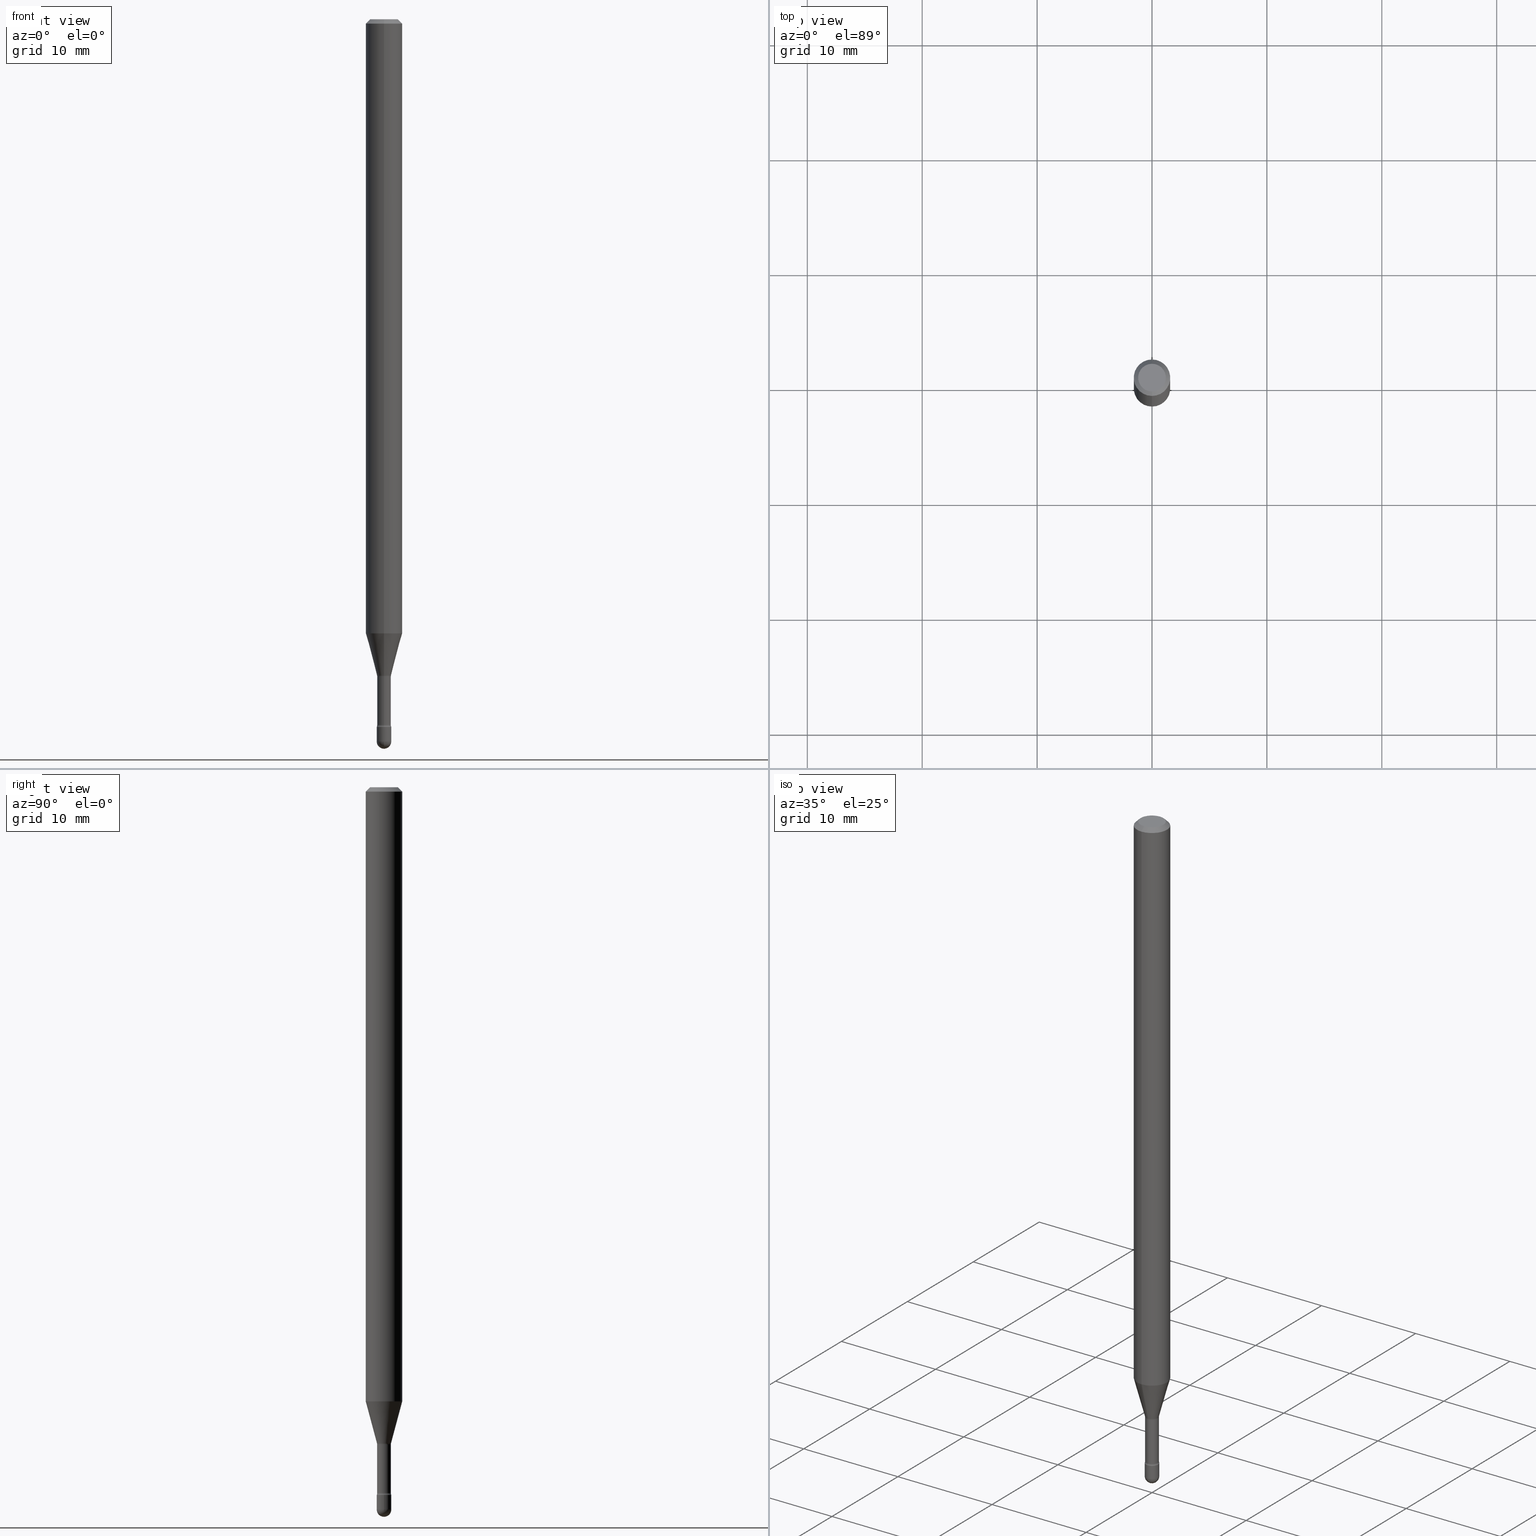
[diagram: canonical four-view strip — front | top / right | iso, engineering-drawing reading convention]
A machine part, canonical four-view strip (front | top / right | iso — engineering-drawing reading convention). The complete STEP part file that produces these views, byte-faithful:
ISO-10303-21;
HEADER;
FILE_DESCRIPTION (( 'STEP AP203' ),
    '1' );
FILE_NAME ('03842.STEP',
    '2024-04-09T20:42:33',
    ( '' ),
    ( '' ),
    'SwSTEP 2.0',
    'SolidWorks 2023',
    '' );
FILE_SCHEMA (( 'CONFIG_CONTROL_DESIGN' ));
ENDSEC;

DATA;
#1 = CARTESIAN_POINT ( 'NONE',  ( 3.668188435593002173E-31, -5.237243165022135808E-17, -0.01500000000000008271 ) ) ;
#2 = CONICAL_SURFACE ( 'NONE', #68, 0.06250000000000000000, 0.7853981633974483900 ) ;
#3 = ADVANCED_FACE ( 'NONE', ( #553 ), #209, .T. ) ;
#4 = VERTEX_POINT ( 'NONE', #325 ) ;
#5 = ORIENTED_EDGE ( 'NONE', *, *, #521, .T. ) ;
#6 = ADVANCED_FACE ( 'NONE', ( #514 ), #531, .F. ) ;
#7 = CC_DESIGN_PERSON_AND_ORGANIZATION_ASSIGNMENT ( #550, #251, ( #156 ) ) ;
#8 = DIRECTION ( 'NONE',  ( -2.445458957061988148E-29, 3.491495443348071688E-15, 1.000000000000000000 ) ) ;
#9 = VECTOR ( 'NONE', #273, 39.37007874015748143 ) ;
#10 = CYLINDRICAL_SURFACE ( 'NONE', #340, 0.06250000000000000000 ) ;
#11 = EDGE_CURVE ( 'NONE', #268, #386, #513, .T. ) ;
#12 = APPLICATION_CONTEXT ( 'configuration controlled 3d designs of mechanical parts and assemblies' ) ;
#13 = ORIENTED_EDGE ( 'NONE', *, *, #387, .F. ) ;
#14 = CC_DESIGN_DATE_AND_TIME_ASSIGNMENT ( #194, #367, ( #501 ) ) ;
#15 = CARTESIAN_POINT ( 'NONE',  ( -1.169113584055446105E-44, 1.669184350826100908E-30, 4.780733988912460139E-16 ) ) ;
#16 = VERTEX_POINT ( 'NONE', #246 ) ;
#17 = CARTESIAN_POINT ( 'NONE',  ( 6.052535295308213750E-29, -8.641416313636786609E-15, -2.475000000000000089 ) ) ;
#18 = DIRECTION ( 'NONE',  ( 1.000000000000000000, -6.982962677686253300E-15, 0.000000000000000000 ) ) ;
#19 = AXIS2_PLACEMENT_3D ( 'NONE', #255, #205, #374 ) ;
#20 = AXIS2_PLACEMENT_3D ( 'NONE', #236, #443, #62 ) ;
#21 = ORIENTED_EDGE ( 'NONE', *, *, #421, .T. ) ;
#22 = CARTESIAN_POINT ( 'NONE',  ( -4.364351673553912750E-16, -0.06250000000000005551, -0.01499999999999986587 ) ) ;
#23 = CARTESIAN_POINT ( 'NONE',  ( 5.507134095058153276E-29, -7.862727945975154594E-15, -2.251974787463811190 ) ) ;
#24 = CALENDAR_DATE ( 2024, 9, 4 ) ;
#25 = CARTESIAN_POINT ( 'NONE',  ( 1.776356839400844181E-16, 0.02499999999999154635, -2.425000000000000266 ) ) ;
#26 = CARTESIAN_POINT ( 'NONE',  ( -1.640996229255680627E-16, -0.02350000000000843775, -2.418461651584689065 ) ) ;
#27 = DIMENSIONAL_EXPONENTS ( 1.000000000000000000, 0.000000000000000000, 0.000000000000000000, 0.000000000000000000, 0.000000000000000000, 0.000000000000000000, 0.000000000000000000 ) ;
#28 = APPROVAL_DATE_TIME ( #203, #304 ) ;
#29 = CARTESIAN_POINT ( 'NONE',  ( -1.169113584055446105E-44, 1.669184350826100908E-30, 4.780733988912460139E-16 ) ) ;
#30 = CARTESIAN_POINT ( 'NONE',  ( 2.023481237764511496E-45, -2.889152892407899121E-31, -8.274636210756143623E-17 ) ) ;
#31 = VECTOR ( 'NONE', #554, 39.37007874015748143 ) ;
#32 = APPROVAL_PERSON_ORGANIZATION ( #208, #304, #79 ) ;
#33 = ORIENTED_EDGE ( 'NONE', *, *, #453, .F. ) ;
#34 = CARTESIAN_POINT ( 'NONE',  ( 1.669775429036234948E-16, 0.02349999999999999659, 3.960232559725664247E-16 ) ) ;
#35 = ORIENTED_EDGE ( 'NONE', *, *, #521, .F. ) ;
#36 = DATE_TIME_ROLE ( 'creation_date' ) ;
#37 = CARTESIAN_POINT ( 'NONE',  ( 2.023481237764511496E-45, -2.889152892407899121E-31, -8.274636210756143623E-17 ) ) ;
#38 = ORIENTED_EDGE ( 'NONE', *, *, #324, .F. ) ;
#39 = APPROVAL_ROLE ( '' ) ;
#40 = VERTEX_POINT ( 'NONE', #296 ) ;
#41 = ORIENTED_EDGE ( 'NONE', *, *, #387, .T. ) ;
#42 = CLOSED_SHELL ( 'NONE', ( #349, #344, #6, #310, #305, #334, #454, #285, #470, #223, #158, #351, #105, #313 ) ) ;
#43 = CARTESIAN_POINT ( 'NONE',  ( 5.914248708178706297E-29, -8.444047836419993030E-15, -2.418461651584689065 ) ) ;
#44 = AXIS2_PLACEMENT_3D ( 'NONE', #257, #424, #492 ) ;
#45 = ORIENTED_EDGE ( 'NONE', *, *, #11, .T. ) ;
#46 = DIRECTION ( 'NONE',  ( -2.445458957061988148E-29, 3.491495443348071688E-15, 1.000000000000000000 ) ) ;
#47 = CARTESIAN_POINT ( 'NONE',  ( 5.146346147441865393E-29, -7.347677650363324032E-15, -2.104450018504814501 ) ) ;
#48 = EDGE_LOOP ( 'NONE', ( #232, #368, #59, #89 ) ) ;
#49 = DATE_AND_TIME ( #73, #261 ) ;
#50 = CIRCLE ( 'NONE', #532, 0.02500000000000000139 ) ;
#51 = VERTEX_POINT ( 'NONE', #87 ) ;
#52 = DIRECTION ( 'NONE',  ( -2.445468806185136597E-29, 3.491481338843145583E-15, 1.000000000000000000 ) ) ;
#53 = EDGE_CURVE ( 'NONE', #516, #379, #416, .T. ) ;
#54 = ADVANCED_FACE ( 'NONE', ( #213 ), #252, .T. ) ;
#55 = CARTESIAN_POINT ( 'NONE',  ( 3.073492131224461599E-16, 0.02401111260565613401, -2.248092501787273267 ) ) ;
#56 = AXIS2_PLACEMENT_3D ( 'NONE', #77, #412, #278 ) ;
#57 = EDGE_CURVE ( 'NONE', #4, #51, #78, .T. ) ;
#58 = CC_DESIGN_PERSON_AND_ORGANIZATION_ASSIGNMENT ( #323, #164, ( #156 ) ) ;
#59 = ORIENTED_EDGE ( 'NONE', *, *, #264, .F. ) ;
#60 = CARTESIAN_POINT ( 'NONE',  ( 2.735589532676977819E-16, 0.03849999999999157568, -2.418461651584689065 ) ) ;
#61 = ORIENTED_EDGE ( 'NONE', *, *, #95, .F. ) ;
#62 = DIRECTION ( 'NONE',  ( 1.000000000000000000, -6.982962677686253300E-15, 0.000000000000000000 ) ) ;
#63 = EDGE_CURVE ( 'NONE', #392, #76, #130, .T. ) ;
#64 = CARTESIAN_POINT ( 'NONE',  ( -1.676687031750188674E-16, -0.02401111260567184019, -2.248092501787273267 ) ) ;
#65 = ORIENTED_EDGE ( 'NONE', *, *, #253, .T. ) ;
#66 = DIRECTION ( 'NONE',  ( -2.445468806185136877E-29, 3.491481338843145188E-15, 1.000000000000000000 ) ) ;
#67 = CYLINDRICAL_SURFACE ( 'NONE', #176, 0.02349999999999999659 ) ;
#68 = AXIS2_PLACEMENT_3D ( 'NONE', #148, #457, #113 ) ;
#69 = PERSON_AND_ORGANIZATION_ROLE ( 'classification_officer' ) ;
#70 = LOCAL_TIME ( 16, 42, 33.00000000000000000, #448 ) ;
#71 = DIRECTION ( 'NONE',  ( -1.000000000000000000, 6.982962677686266711E-15, -4.883557194083112901E-29 ) ) ;
#72 = DIRECTION ( 'NONE',  ( -2.445458957061988148E-29, 3.491495443348071688E-15, 1.000000000000000000 ) ) ;
#73 = CALENDAR_DATE ( 2024, 9, 4 ) ;
#74 = DIRECTION ( 'NONE',  ( -6.982962677686263555E-15, -1.000000000000000000, 0.000000000000000000 ) ) ;
#75 = DIRECTION ( 'NONE',  ( -2.445468806185136597E-29, 3.491481338843145583E-15, 1.000000000000000000 ) ) ;
#76 = VERTEX_POINT ( 'NONE', #420 ) ;
#77 = CARTESIAN_POINT ( 'NONE',  ( 5.497617944799579952E-29, -7.849204726215230524E-15, -2.248092501787273267 ) ) ;
#78 = CIRCLE ( 'NONE', #282, 0.02500000000000000139 ) ;
#79 = APPROVAL_ROLE ( '' ) ;
#80 = CIRCLE ( 'NONE', #214, 0.02500000000000000486 ) ;
#81 = APPROVAL_PERSON_ORGANIZATION ( #291, #226, #39 ) ;
#82 = VERTEX_POINT ( 'NONE', #25 ) ;
#83 = CC_DESIGN_PERSON_AND_ORGANIZATION_ASSIGNMENT ( #212, #69, ( #501 ) ) ;
#84 = LINE ( 'NONE', #337, #143 ) ;
#85 = DATE_AND_TIME ( #280, #70 ) ;
#86 = DIRECTION ( 'NONE',  ( 7.105427357601001859E-15, 1.000000000000000000, 0.000000000000000000 ) ) ;
#87 = CARTESIAN_POINT ( 'NONE',  ( 0.02500000000000000139, -8.641416313636785031E-15, -2.425000000000000266 ) ) ;
#88 = DIRECTION ( 'NONE',  ( 1.000000000000000000, -6.982962677686253300E-15, 0.000000000000000000 ) ) ;
#89 = ORIENTED_EDGE ( 'NONE', *, *, #421, .F. ) ;
#90 = DIRECTION ( 'NONE',  ( -2.445458957061988148E-29, 3.491495443348071688E-15, 1.000000000000000000 ) ) ;
#91 = AXIS2_PLACEMENT_3D ( 'NONE', #43, #517, #520 ) ;
#92 = ORIENTED_EDGE ( 'NONE', *, *, #525, .F. ) ;
#93 = DIRECTION ( 'NONE',  ( -6.982962677686265922E-15, -1.000000000000000000, 3.483106191921935554E-15 ) ) ;
#94 = ORIENTED_EDGE ( 'NONE', *, *, #493, .F. ) ;
#95 = EDGE_CURVE ( 'NONE', #256, #76, #180, .T. ) ;
#96 = ORIENTED_EDGE ( 'NONE', *, *, #264, .T. ) ;
#97 = CARTESIAN_POINT ( 'NONE',  ( 1.723066134218835387E-16, 0.02349999999999155195, -2.418461651584689065 ) ) ;
#98 = CC_DESIGN_PERSON_AND_ORGANIZATION_ASSIGNMENT ( #508, #413, ( #391 ) ) ;
#99 = ORIENTED_EDGE ( 'NONE', *, *, #403, .F. ) ;
#100 = EDGE_CURVE ( 'NONE', #530, #40, #404, .T. ) ;
#101 = FACE_OUTER_BOUND ( 'NONE', #134, .T. ) ;
#102 = DIRECTION ( 'NONE',  ( -2.445458957061988148E-29, 3.491495443348071688E-15, 1.000000000000000000 ) ) ;
#103 = CONICAL_SURFACE ( 'NONE', #220, 0.06250000000000000000, 0.7853981633974483900 ) ;
#104 = DIRECTION ( 'NONE',  ( -6.982962677686265922E-15, -1.000000000000000000, 3.491495443348071688E-15 ) ) ;
#105 = ADVANCED_FACE ( 'NONE', ( #502 ), #414, .T. ) ;
#106 = ORIENTED_EDGE ( 'NONE', *, *, #324, .T. ) ;
#107 = DIRECTION ( 'NONE',  ( -6.982962677686265133E-15, -1.000000000000000000, 0.000000000000000000 ) ) ;
#108 = DIRECTION ( 'NONE',  ( -2.445458957061988148E-29, 3.491495443348071688E-15, 1.000000000000000000 ) ) ;
#109 = EDGE_LOOP ( 'NONE', ( #5, #494, #277, #358 ) ) ;
#110 = DIRECTION ( 'NONE',  ( -7.105427357601001070E-15, -1.000000000000000000, 0.000000000000000000 ) ) ;
#111 = DIRECTION ( 'NONE',  ( -2.445458957061988148E-29, 3.491495443348071688E-15, 1.000000000000000000 ) ) ;
#112 = CARTESIAN_POINT ( 'NONE',  ( 5.930261854998957144E-29, -8.466842246694628363E-15, -2.425000000000000266 ) ) ;
#113 = DIRECTION ( 'NONE',  ( 6.982962677686265922E-15, 1.000000000000000000, -3.483106191921935554E-15 ) ) ;
#114 = AXIS2_PLACEMENT_3D ( 'NONE', #238, #111, #136 ) ;
#115 = ORIENTED_EDGE ( 'NONE', *, *, #225, .F. ) ;
#116 = FACE_OUTER_BOUND ( 'NONE', #178, .T. ) ;
#117 =( NAMED_UNIT ( * ) PLANE_ANGLE_UNIT ( ) SI_UNIT ( $, .RADIAN. ) );
#118 = EDGE_LOOP ( 'NONE', ( #451, #230, #133, #427, #106 ) ) ;
#119 = DIRECTION ( 'NONE',  ( -6.982962677686267499E-15, -1.000000000000000000, 0.000000000000000000 ) ) ;
#120 = DIRECTION ( 'NONE',  ( -1.000000000000000000, 6.982962677686265922E-15, -4.883557194083112901E-29 ) ) ;
#121 = AXIS2_PLACEMENT_3D ( 'NONE', #279, #8, #402 ) ;
#122 = CC_DESIGN_APPROVAL ( #173, ( #501 ) ) ;
#123 = DIRECTION ( 'NONE',  ( -2.445458957061988148E-29, 3.491495443348071688E-15, 1.000000000000000000 ) ) ;
#124 = EDGE_CURVE ( 'NONE', #186, #536, #383, .T. ) ;
#125 = ADVANCED_BREP_SHAPE_REPRESENTATION ( '03842', ( #447, #436, #426 ), #477 ) ;
#126 = EDGE_LOOP ( 'NONE', ( #147, #99, #184, #221 ) ) ;
#127 = CARTESIAN_POINT ( 'NONE',  ( 3.668188435593002173E-31, -5.237243165022135808E-17, -0.01500000000000008271 ) ) ;
#128 = EDGE_LOOP ( 'NONE', ( #376, #35, #270, #96 ) ) ;
#129 = CIRCLE ( 'NONE', #219, 0.06250000000000000000 ) ;
#130 = CIRCLE ( 'NONE', #329, 0.02350000000000000352 ) ;
#131 = CARTESIAN_POINT ( 'NONE',  ( 5.930237970875322114E-29, -8.466876450119073706E-15, -2.425000000000000266 ) ) ;
#132 = AXIS2_PLACEMENT_3D ( 'NONE', #345, #177, #174 ) ;
#133 = ORIENTED_EDGE ( 'NONE', *, *, #153, .F. ) ;
#134 = EDGE_LOOP ( 'NONE', ( #541, #163, #179, #292 ) ) ;
#135 = AXIS2_PLACEMENT_3D ( 'NONE', #262, #523, #388 ) ;
#136 = DIRECTION ( 'NONE',  ( -6.982962677686265922E-15, -1.000000000000000000, 0.000000000000000000 ) ) ;
#137 = FACE_OUTER_BOUND ( 'NONE', #118, .T. ) ;
#138 = CARTESIAN_POINT ( 'NONE',  ( 5.914272527905343055E-29, -8.444013725215714647E-15, -2.418461651584689065 ) ) ;
#139 = CC_DESIGN_DATE_AND_TIME_ASSIGNMENT ( #85, #36, ( #391 ) ) ;
#140 = ORIENTED_EDGE ( 'NONE', *, *, #57, .T. ) ;
#141 = CIRCLE ( 'NONE', #294, 0.02401111260566398883 ) ;
#142 = DIRECTION ( 'NONE',  ( -6.982962677686265922E-15, -1.000000000000000000, 3.491495443348071688E-15 ) ) ;
#143 = VECTOR ( 'NONE', #510, 39.37007874015748143 ) ;
#144 = ORIENTED_EDGE ( 'NONE', *, *, #522, .T. ) ;
#145 = FACE_OUTER_BOUND ( 'NONE', #126, .T. ) ;
#146 = DIRECTION ( 'NONE',  ( -6.982962677686265922E-15, -1.000000000000000000, 3.491495443348071688E-15 ) ) ;
#147 = ORIENTED_EDGE ( 'NONE', *, *, #441, .F. ) ;
#148 = CARTESIAN_POINT ( 'NONE',  ( 3.668188435593002173E-31, -5.237243165022135808E-17, -0.01500000000000008271 ) ) ;
#149 = APPROVAL_STATUS ( 'not_yet_approved' ) ;
#150 = EDGE_CURVE ( 'NONE', #268, #186, #429, .T. ) ;
#151 = DIRECTION ( 'NONE',  ( -2.445458957061988148E-29, 3.491495443348071688E-15, 1.000000000000000000 ) ) ;
#152 = LINE ( 'NONE', #369, #450 ) ;
#153 = EDGE_CURVE ( 'NONE', #51, #4, #301, .T. ) ;
#154 = AXIS2_PLACEMENT_3D ( 'NONE', #271, #102, #146 ) ;
#155 =( NAMED_UNIT ( * ) SI_UNIT ( $, .STERADIAN. ) SOLID_ANGLE_UNIT ( ) );
#156 = PRODUCT_DEFINITION_FORMATION_WITH_SPECIFIED_SOURCE ( 'ANY', '', #461, .NOT_KNOWN. ) ;
#157 = EDGE_LOOP ( 'NONE', ( #115, #274, #490, #263 ) ) ;
#158 = ADVANCED_FACE ( 'NONE', ( #472 ), #564, .F. ) ;
#159 = DIRECTION ( 'NONE',  ( -2.445458957061988148E-29, 3.491495443348071688E-15, 1.000000000000000000 ) ) ;
#160 = COORDINATED_UNIVERSAL_TIME_OFFSET ( 5, 0, .BEHIND. ) ;
#161 = DIRECTION ( 'NONE',  ( -2.438088387897960049E-29, 3.491481338843145188E-15, 1.000000000000000000 ) ) ;
#162 = FACE_OUTER_BOUND ( 'NONE', #519, .T. ) ;
#163 = ORIENTED_EDGE ( 'NONE', *, *, #441, .T. ) ;
#164 = PERSON_AND_ORGANIZATION_ROLE ( 'design_supplier' ) ;
#165 = EDGE_CURVE ( 'NONE', #82, #352, #425, .T. ) ;
#166 = DIRECTION ( 'NONE',  ( -6.982962677686266711E-15, -1.000000000000000000, 3.491495443348071294E-15 ) ) ;
#167 = ORIENTED_EDGE ( 'NONE', *, *, #210, .F. ) ;
#168 = AXIS2_PLACEMENT_3D ( 'NONE', #127, #299, #474 ) ;
#169 = LOCAL_TIME ( 16, 42, 33.00000000000000000, #160 ) ;
#170 = CARTESIAN_POINT ( 'NONE',  ( 4.440892098500625669E-16, 0.06250000000000000000, 2.598549336819915827E-16 ) ) ;
#171 = EDGE_CURVE ( 'NONE', #386, #268, #129, .T. ) ;
#172 = DIRECTION ( 'NONE',  ( -6.982962677686265133E-15, -1.000000000000000000, 0.000000000000000000 ) ) ;
#173 = APPROVAL ( #149, 'UNSPECIFIED' ) ;
#174 = DIRECTION ( 'NONE',  ( 6.982962677686265922E-15, 1.000000000000000000, -3.491495443348071688E-15 ) ) ;
#175 = AXIS2_PLACEMENT_3D ( 'NONE', #37, #151, #328 ) ;
#176 = AXIS2_PLACEMENT_3D ( 'NONE', #15, #322, #440 ) ;
#177 = DIRECTION ( 'NONE',  ( 2.445458957061987588E-29, -3.491495443348071688E-15, -1.000000000000000000 ) ) ;
#178 = EDGE_LOOP ( 'NONE', ( #13, #259, #38, #92 ) ) ;
#179 = ORIENTED_EDGE ( 'NONE', *, *, #210, .T. ) ;
#180 = CIRCLE ( 'NONE', #551, 0.01500000000000002720 ) ;
#181 = AXIS2_PLACEMENT_3D ( 'NONE', #484, #108, #234 ) ;
#182 = CARTESIAN_POINT ( 'NONE',  ( 4.440892098501137935E-16, 0.06249999999999262396, -2.104450018504814501 ) ) ;
#183 = CARTESIAN_POINT ( 'NONE',  ( 6.052535295308213750E-29, -8.641416313636786609E-15, -2.475000000000000089 ) ) ;
#184 = ORIENTED_EDGE ( 'NONE', *, *, #547, .T. ) ;
#185 = DIRECTION ( 'NONE',  ( 2.445458957061988148E-29, -3.491495443348071688E-15, -1.000000000000000000 ) ) ;
#186 = VERTEX_POINT ( 'NONE', #479 ) ;
#187 = CLOSED_SHELL ( 'NONE', ( #258, #3, #54, #529, #463 ) ) ;
#188 = DIRECTION ( 'NONE',  ( -1.000000000000000000, 6.982962677686266711E-15, -4.883557194083112901E-29 ) ) ;
#189 = AXIS2_PLACEMENT_3D ( 'NONE', #497, #333, #542 ) ;
#190 = FACE_OUTER_BOUND ( 'NONE', #306, .T. ) ;
#191 = ORIENTED_EDGE ( 'NONE', *, *, #11, .F. ) ;
#192 = LINE ( 'NONE', #365, #468 ) ;
#193 = FACE_OUTER_BOUND ( 'NONE', #48, .T. ) ;
#194 = DATE_AND_TIME ( #410, #249 ) ;
#195 = DIRECTION ( 'NONE',  ( 1.000000000000000000, -6.982962677686254878E-15, 0.000000000000000000 ) ) ;
#196 = CARTESIAN_POINT ( 'NONE',  ( 1.669775429036826593E-16, 0.02349999999999213482, -2.251974787463811190 ) ) ;
#197 = COORDINATED_UNIVERSAL_TIME_OFFSET ( 5, 0, .BEHIND. ) ;
#198 = EDGE_CURVE ( 'NONE', #386, #536, #217, .T. ) ;
#199 = DIRECTION ( 'NONE',  ( -2.445458957061988148E-29, 3.491495443348071688E-15, 1.000000000000000000 ) ) ;
#200 = LINE ( 'NONE', #460, #272 ) ;
#201 = CIRCLE ( 'NONE', #260, 0.02401111260566398883 ) ;
#202 = TOROIDAL_SURFACE ( 'NONE', #154, 0.03850000000000000644, 0.01500000000000002373 ) ;
#203 = DATE_AND_TIME ( #370, #169 ) ;
#204 = CC_DESIGN_APPROVAL ( #226, ( #156 ) ) ;
#205 = DIRECTION ( 'NONE',  ( -2.445458957061988148E-29, 3.491495443348071688E-15, 1.000000000000000000 ) ) ;
#206 = CARTESIAN_POINT ( 'NONE',  ( -0.02500000000000000486, 1.776356839400250810E-16, -1.229733772563726656E-30 ) ) ;
#207 = ORIENTED_EDGE ( 'NONE', *, *, #150, .T. ) ;
#208 = PERSON_AND_ORGANIZATION ( #381, #406 ) ;
#209 = SPHERICAL_SURFACE ( 'NONE', #353, 0.02499999999999993894 ) ;
#210 = EDGE_CURVE ( 'NONE', #536, #186, #293, .T. ) ;
#211 = VERTEX_POINT ( 'NONE', #389 ) ;
#212 = PERSON_AND_ORGANIZATION ( #381, #406 ) ;
#213 = FACE_OUTER_BOUND ( 'NONE', #480, .T. ) ;
#214 = AXIS2_PLACEMENT_3D ( 'NONE', #452, #75, #241 ) ;
#215 = DIRECTION ( 'NONE',  ( -2.445458957061988148E-29, 3.491495443348071688E-15, 1.000000000000000000 ) ) ;
#216 = FACE_OUTER_BOUND ( 'NONE', #400, .T. ) ;
#217 = LINE ( 'NONE', #390, #538 ) ;
#218 = ORIENTED_EDGE ( 'NONE', *, *, #153, .T. ) ;
#219 = AXIS2_PLACEMENT_3D ( 'NONE', #47, #90, #302 ) ;
#220 = AXIS2_PLACEMENT_3D ( 'NONE', #231, #185, #228 ) ;
#221 = ORIENTED_EDGE ( 'NONE', *, *, #124, .T. ) ;
#222 = CARTESIAN_POINT ( 'NONE',  ( 6.052535295308213750E-29, -8.641416313636786609E-15, -2.475000000000000089 ) ) ;
#223 = ADVANCED_FACE ( 'NONE', ( #216 ), #566, .F. ) ;
#224 = CARTESIAN_POINT ( 'NONE',  ( -1.169113584055446105E-44, 1.669184350826100908E-30, 4.780733988912460139E-16 ) ) ;
#225 = EDGE_CURVE ( 'NONE', #379, #516, #466, .T. ) ;
#226 = APPROVAL ( #338, 'UNSPECIFIED' ) ;
#227 = AXIS2_PLACEMENT_3D ( 'NONE', #346, #298, #88 ) ;
#228 = DIRECTION ( 'NONE',  ( 6.982962677686265922E-15, 1.000000000000000000, -3.483106191921935554E-15 ) ) ;
#229 = EDGE_CURVE ( 'NONE', #559, #211, #515, .T. ) ;
#230 = ORIENTED_EDGE ( 'NONE', *, *, #493, .T. ) ;
#231 = CARTESIAN_POINT ( 'NONE',  ( 3.668188435593002173E-31, -5.237243165022135808E-17, -0.01500000000000008271 ) ) ;
#232 = ORIENTED_EDGE ( 'NONE', *, *, #53, .T. ) ;
#233 = CARTESIAN_POINT ( 'NONE',  ( -3.773273898774340269E-16, -0.04749999999999999362, 8.309967145147196354E-17 ) ) ;
#234 = DIRECTION ( 'NONE',  ( -6.982962677686265922E-15, -1.000000000000000000, 3.491495443348071688E-15 ) ) ;
#235 = ORIENTED_EDGE ( 'NONE', *, *, #63, .F. ) ;
#236 = CARTESIAN_POINT ( 'NONE',  ( 6.052535295308213750E-29, -8.641416313636786609E-15, -2.475000000000000089 ) ) ;
#237 = AXIS2_PLACEMENT_3D ( 'NONE', #222, #244, #110 ) ;
#238 = CARTESIAN_POINT ( 'NONE',  ( 5.507111915081143692E-29, -7.862759708964638251E-15, -2.251974787463811190 ) ) ;
#239 = COORDINATED_UNIVERSAL_TIME_OFFSET ( 5, 0, .BEHIND. ) ;
#240 = DIRECTION ( 'NONE',  ( -2.445458957061988148E-29, 3.491495443348071688E-15, 1.000000000000000000 ) ) ;
#241 = DIRECTION ( 'NONE',  ( 1.000000000000000000, -6.982962677686253300E-15, 0.000000000000000000 ) ) ;
#242 = EDGE_CURVE ( 'NONE', #350, #392, #347, .T. ) ;
#243 = EDGE_LOOP ( 'NONE', ( #482, #41, #433, #336 ) ) ;
#244 = DIRECTION ( 'NONE',  ( -1.000000000000000000, 7.105427357601001070E-15, -4.926315508542082329E-29 ) ) ;
#245 = PERSON_AND_ORGANIZATION_ROLE ( 'design_owner' ) ;
#246 = CARTESIAN_POINT ( 'NONE',  ( -1.776356839399642894E-16, -0.02500000000000861256, -2.475000000000000089 ) ) ;
#247 = DIRECTION ( 'NONE',  ( -2.445458957061988148E-29, 3.491495443348071688E-15, 1.000000000000000000 ) ) ;
#248 = VECTOR ( 'NONE', #66, 39.37007874015748143 ) ;
#249 = LOCAL_TIME ( 16, 42, 33.00000000000000000, #239 ) ;
#250 = ORIENTED_EDGE ( 'NONE', *, *, #403, .T. ) ;
#251 = PERSON_AND_ORGANIZATION_ROLE ( 'creator' ) ;
#252 = PLANE ( 'NONE',  #438 ) ;
#253 = EDGE_CURVE ( 'NONE', #350, #256, #201, .T. ) ;
#254 = SECURITY_CLASSIFICATION_LEVEL ( 'unclassified' ) ;
#255 = CARTESIAN_POINT ( 'NONE',  ( 5.914248708178706297E-29, -8.444047836419993030E-15, -2.418461651584689065 ) ) ;
#256 = VERTEX_POINT ( 'NONE', #64 ) ;
#257 = CARTESIAN_POINT ( 'NONE',  ( 2.735589532676936404E-16, 0.03849999999999214467, -2.251974787463811190 ) ) ;
#258 = ADVANCED_FACE ( 'NONE', ( #137 ), #366, .T. ) ;
#259 = ORIENTED_EDGE ( 'NONE', *, *, #312, .T. ) ;
#260 = AXIS2_PLACEMENT_3D ( 'NONE', #534, #543, #446 ) ;
#261 = LOCAL_TIME ( 16, 42, 33.00000000000000000, #498 ) ;
#262 = CARTESIAN_POINT ( 'NONE',  ( 5.930261854998957144E-29, -8.466842246694628363E-15, -2.425000000000000266 ) ) ;
#263 = ORIENTED_EDGE ( 'NONE', *, *, #503, .F. ) ;
#264 = EDGE_CURVE ( 'NONE', #76, #392, #284, .T. ) ;
#265 = APPROVAL_DATE_TIME ( #49, #173 ) ;
#266 = DIRECTION ( 'NONE',  ( -6.982962677686265922E-15, -1.000000000000000000, 3.491495443348071688E-15 ) ) ;
#267 = ORIENTED_EDGE ( 'NONE', *, *, #355, .F. ) ;
#268 = VERTEX_POINT ( 'NONE', #182 ) ;
#269 = AXIS2_PLACEMENT_3D ( 'NONE', #411, #289, #509 ) ;
#270 = ORIENTED_EDGE ( 'NONE', *, *, #95, .T. ) ;
#271 = CARTESIAN_POINT ( 'NONE',  ( 5.507134095058153276E-29, -7.862727945975154594E-15, -2.251974787463811190 ) ) ;
#272 = VECTOR ( 'NONE', #72, 39.37007874015748143 ) ;
#273 = DIRECTION ( 'NONE',  ( -2.445468806185136877E-29, 3.491481338843145188E-15, 1.000000000000000000 ) ) ;
#274 = ORIENTED_EDGE ( 'NONE', *, *, #355, .T. ) ;
#275 = CARTESIAN_POINT ( 'NONE',  ( 5.930237970875322114E-29, -8.466876450119073706E-15, -2.425000000000000266 ) ) ;
#276 = CARTESIAN_POINT ( 'NONE',  ( 0.02500000000000000486, -1.745740669421567171E-16, 1.219044193948984299E-30 ) ) ;
#277 = ORIENTED_EDGE ( 'NONE', *, *, #171, .F. ) ;
#278 = DIRECTION ( 'NONE',  ( -6.982962677686265133E-15, -1.000000000000000000, 0.000000000000000000 ) ) ;
#279 = CARTESIAN_POINT ( 'NONE',  ( 5.497617944799579952E-29, -7.849204726215230524E-15, -2.248092501787273267 ) ) ;
#280 = CALENDAR_DATE ( 2024, 9, 4 ) ;
#281 = ORIENTED_EDGE ( 'NONE', *, *, #565, .T. ) ;
#282 = AXIS2_PLACEMENT_3D ( 'NONE', #112, #382, #195 ) ;
#283 = CARTESIAN_POINT ( 'NONE',  ( -2.688440630908622458E-16, -0.03850000000000846495, -2.418461651584689065 ) ) ;
#284 = CIRCLE ( 'NONE', #114, 0.02350000000000000352 ) ;
#285 = ADVANCED_FACE ( 'NONE', ( #190 ), #309, .T. ) ;
#286 = CARTESIAN_POINT ( 'NONE',  ( 0.000000000000000000, 0.000000000000000000, 0.000000000000000000 ) ) ;
#287 = ORIENTED_EDGE ( 'NONE', *, *, #100, .T. ) ;
#288 = DIRECTION ( 'NONE',  ( 1.000000000000000000, 0.000000000000000000, 0.000000000000000000 ) ) ;
#289 = DIRECTION ( 'NONE',  ( -2.445458957061988148E-29, 3.491495443348071688E-15, 1.000000000000000000 ) ) ;
#290 = DIRECTION ( 'NONE',  ( -2.445458957061988148E-29, 3.491495443348071688E-15, 1.000000000000000000 ) ) ;
#291 = PERSON_AND_ORGANIZATION ( #381, #406 ) ;
#292 = ORIENTED_EDGE ( 'NONE', *, *, #547, .F. ) ;
#293 = CIRCLE ( 'NONE', #500, 0.06250000000000000000 ) ;
#294 = AXIS2_PLACEMENT_3D ( 'NONE', #491, #247, #107 ) ;
#295 = MECHANICAL_CONTEXT ( 'NONE', #475, 'mechanical' ) ;
#296 = CARTESIAN_POINT ( 'NONE',  ( 3.840629472727447874E-16, 0.04749999999999999362, -2.485923956665948360E-16 ) ) ;
#297 = ORIENTED_EDGE ( 'NONE', *, *, #124, .F. ) ;
#298 = DIRECTION ( 'NONE',  ( -2.445468806185136597E-29, 3.491481338843145583E-15, 1.000000000000000000 ) ) ;
#299 = DIRECTION ( 'NONE',  ( -2.445458957061988148E-29, 3.491495443348071688E-15, 1.000000000000000000 ) ) ;
#300 = ORIENTED_EDGE ( 'NONE', *, *, #242, .T. ) ;
#301 = CIRCLE ( 'NONE', #135, 0.02500000000000000139 ) ;
#302 = DIRECTION ( 'NONE',  ( -6.982962677686265922E-15, -1.000000000000000000, 4.370956789862821150E-15 ) ) ;
#303 = EDGE_LOOP ( 'NONE', ( #478, #300, #528, #61 ) ) ;
#304 = APPROVAL ( #415, 'UNSPECIFIED' ) ;
#305 = ADVANCED_FACE ( 'NONE', ( #537 ), #10, .T. ) ;
#306 = EDGE_LOOP ( 'NONE', ( #442, #45, #430, #297 ) ) ;
#307 = CONICAL_SURFACE ( 'NONE', #56, 0.02401111260566398883, 0.2617993877991502960 ) ;
#308 = CC_DESIGN_APPROVAL ( #304, ( #391 ) ) ;
#309 = CYLINDRICAL_SURFACE ( 'NONE', #181, 0.06250000000000000000 ) ;
#310 = ADVANCED_FACE ( 'NONE', ( #101 ), #103, .T. ) ;
#311 = DIRECTION ( 'NONE',  ( 1.000000000000000000, -6.982962677686267499E-15, 4.876176775795936353E-29 ) ) ;
#312 = EDGE_CURVE ( 'NONE', #473, #559, #418, .T. ) ;
#313 = ADVANCED_FACE ( 'NONE', ( #486 ), #202, .F. ) ;
#314 = DIRECTION ( 'NONE',  ( -2.445458957061988148E-29, 3.491495443348071688E-15, 1.000000000000000000 ) ) ;
#315 = VECTOR ( 'NONE', #215, 39.37007874015748143 ) ;
#316 = CIRCLE ( 'NONE', #384, 0.01500000000000002720 ) ;
#317 = EDGE_LOOP ( 'NONE', ( #267, #339, #332, #144 ) ) ;
#318 = DIRECTION ( 'NONE',  ( 1.000000000000000000, -6.982962677686265922E-15, 4.883557194083112340E-29 ) ) ;
#319 = EDGE_CURVE ( 'NONE', #481, #51, #395, .T. ) ;
#320 = ORIENTED_EDGE ( 'NONE', *, *, #171, .T. ) ;
#321 = CARTESIAN_POINT ( 'NONE',  ( 6.114740973324316709E-29, -8.727172538608929491E-15, -2.500000000000000000 ) ) ;
#322 = DIRECTION ( 'NONE',  ( -2.445458957061988148E-29, 3.491495443348071688E-15, 1.000000000000000000 ) ) ;
#323 = PERSON_AND_ORGANIZATION ( #381, #406 ) ;
#324 = EDGE_CURVE ( 'NONE', #481, #559, #563, .T. ) ;
#325 = CARTESIAN_POINT ( 'NONE',  ( -0.02500000000000000139, -8.376493596225682282E-15, -2.425000000000000266 ) ) ;
#326 = FACE_OUTER_BOUND ( 'NONE', #361, .T. ) ;
#327 = APPROVAL_ROLE ( '' ) ;
#328 = DIRECTION ( 'NONE',  ( -6.982962677686266711E-15, -1.000000000000000000, 3.491495443348072477E-15 ) ) ;
#329 = AXIS2_PLACEMENT_3D ( 'NONE', #378, #456, #496 ) ;
#330 = CYLINDRICAL_SURFACE ( 'NONE', #189, 0.02500000000000000486 ) ;
#331 = TOROIDAL_SURFACE ( 'NONE', #524, 0.03850000000000002032, 0.01500000000000002720 ) ;
#332 = ORIENTED_EDGE ( 'NONE', *, *, #503, .T. ) ;
#333 = DIRECTION ( 'NONE',  ( -2.445468806185136597E-29, 3.491481338843145583E-15, 1.000000000000000000 ) ) ;
#334 = ADVANCED_FACE ( 'NONE', ( #363 ), #393, .T. ) ;
#335 = DIRECTION ( 'NONE',  ( 1.000000000000000000, -7.105427357601001070E-15, 4.926315681272450898E-29 ) ) ;
#336 = ORIENTED_EDGE ( 'NONE', *, *, #229, .F. ) ;
#337 = CARTESIAN_POINT ( 'NONE',  ( -1.676687031750188674E-16, -0.02401111260567184019, -2.248092501787273267 ) ) ;
#338 = APPROVAL_STATUS ( 'not_yet_approved' ) ;
#339 = ORIENTED_EDGE ( 'NONE', *, *, #53, .F. ) ;
#340 = AXIS2_PLACEMENT_3D ( 'NONE', #224, #487, #142 ) ;
#341 = DESIGN_CONTEXT ( 'detailed design', #12, 'design' ) ;
#342 = CARTESIAN_POINT ( 'NONE',  ( 1.745740669422159556E-16, 0.02499999999999153247, -2.425000000000000266 ) ) ;
#343 = ORIENTED_EDGE ( 'NONE', *, *, #225, .T. ) ;
#344 = ADVANCED_FACE ( 'NONE', ( #193 ), #67, .T. ) ;
#345 = CARTESIAN_POINT ( 'NONE',  ( 3.316907271900976096E-16, 0.04749999999999999362, 3.181748483280896919E-17 ) ) ;
#346 = CARTESIAN_POINT ( 'NONE',  ( 6.052535295308213750E-29, -8.641416313636786609E-15, -2.475000000000000089 ) ) ;
#347 = CIRCLE ( 'NONE', #44, 0.01500000000000002720 ) ;
#348 = DIRECTION ( 'NONE',  ( -2.445458957061988148E-29, 3.491495443348071688E-15, 1.000000000000000000 ) ) ;
#349 = ADVANCED_FACE ( 'NONE', ( #409 ), #483, .F. ) ;
#350 = VERTEX_POINT ( 'NONE', #55 ) ;
#351 = ADVANCED_FACE ( 'NONE', ( #397 ), #331, .F. ) ;
#352 = VERTEX_POINT ( 'NONE', #357 ) ;
#353 = AXIS2_PLACEMENT_3D ( 'NONE', #562, #71, #506 ) ;
#354 = AXIS2_PLACEMENT_3D ( 'NONE', #434, #535, #311 ) ;
#355 = EDGE_CURVE ( 'NONE', #379, #82, #396, .T. ) ;
#356 = DIRECTION ( 'NONE',  ( 6.982962677686265922E-15, 1.000000000000000000, 0.000000000000000000 ) ) ;
#357 = CARTESIAN_POINT ( 'NONE',  ( -1.745740669420974292E-16, -0.02500000000000848419, -2.425000000000000266 ) ) ;
#358 = ORIENTED_EDGE ( 'NONE', *, *, #565, .F. ) ;
#359 = DIRECTION ( 'NONE',  ( -2.445458957061988148E-29, 3.491495443348071688E-15, 1.000000000000000000 ) ) ;
#360 = AXIS2_PLACEMENT_3D ( 'NONE', #60, #335, #86 ) ;
#361 = EDGE_LOOP ( 'NONE', ( #94, #431, #398, #544, #459 ) ) ;
#362 = DIRECTION ( 'NONE',  ( 6.982962677686266711E-15, 1.000000000000000000, 0.000000000000000000 ) ) ;
#363 = FACE_OUTER_BOUND ( 'NONE', #109, .T. ) ;
#364 = EDGE_LOOP ( 'NONE', ( #320, #207, #167, #557 ) ) ;
#365 = CARTESIAN_POINT ( 'NONE',  ( 4.364351673553919652E-16, 0.06249999999999995143, -0.01500000000000030129 ) ) ;
#366 = CYLINDRICAL_SURFACE ( 'NONE', #354, 0.02500000000000000486 ) ;
#367 = DATE_TIME_ROLE ( 'classification_date' ) ;
#368 = ORIENTED_EDGE ( 'NONE', *, *, #453, .T. ) ;
#369 = CARTESIAN_POINT ( 'NONE',  ( 1.706092163947781318E-16, 0.02401111260565613748, -2.248092501787273267 ) ) ;
#370 = CALENDAR_DATE ( 2024, 9, 4 ) ;
#371 = DIRECTION ( 'NONE',  ( -6.982962677686265922E-15, -1.000000000000000000, 3.491495443348071688E-15 ) ) ;
#372 = LINE ( 'NONE', #375, #31 ) ;
#373 = PRODUCT_DEFINITION_SHAPE ( 'NONE', 'NONE',  #391 ) ;
#374 = DIRECTION ( 'NONE',  ( -6.982962677686265922E-15, -1.000000000000000000, 0.000000000000000000 ) ) ;
#375 = CARTESIAN_POINT ( 'NONE',  ( -4.287811248607203282E-16, -0.06250000000000005551, -0.01499999999999986587 ) ) ;
#376 = ORIENTED_EDGE ( 'NONE', *, *, #242, .F. ) ;
#377 = APPLICATION_PROTOCOL_DEFINITION ( 'international standard', 'config_control_design', 1994, #12 ) ;
#378 = CARTESIAN_POINT ( 'NONE',  ( 5.507111915081143692E-29, -7.862759708964638251E-15, -2.251974787463811190 ) ) ;
#379 = VERTEX_POINT ( 'NONE', #97 ) ;
#380 = DATE_AND_TIME ( #24, #385 ) ;
#381 = PERSON ( 'UNSPECIFIED', 'UNSPECIFIED', 'UNSPECIFIED', ('UNSPECIFIED'), ('UNSPECIFIED'), ('UNSPECIFIED') ) ;
#382 = DIRECTION ( 'NONE',  ( -2.445468806185136597E-29, 3.491481338843145583E-15, 1.000000000000000000 ) ) ;
#383 = CIRCLE ( 'NONE', #168, 0.06250000000000000000 ) ;
#384 = AXIS2_PLACEMENT_3D ( 'NONE', #283, #556, #119 ) ;
#385 = LOCAL_TIME ( 16, 42, 33.00000000000000000, #197 ) ;
#386 = VERTEX_POINT ( 'NONE', #485 ) ;
#387 = EDGE_CURVE ( 'NONE', #473, #16, #526, .T. ) ;
#388 = DIRECTION ( 'NONE',  ( 1.000000000000000000, -6.982962677686254878E-15, 0.000000000000000000 ) ) ;
#389 = CARTESIAN_POINT ( 'NONE',  ( -0.02500000000000000486, -8.376493596225682282E-15, -2.475000000000000089 ) ) ;
#390 = CARTESIAN_POINT ( 'NONE',  ( -4.364351673553916201E-16, -0.06250000000000000000, 6.962918641005005438E-16 ) ) ;
#391 = PRODUCT_DEFINITION ( 'UNKNOWN', '', #156, #341 ) ;
#392 = VERTEX_POINT ( 'NONE', #196 ) ;
#393 = CONICAL_SURFACE ( 'NONE', #121, 0.02401111260566398883, 0.2617993877991502960 ) ;
#394 = ORIENTED_EDGE ( 'NONE', *, *, #165, .F. ) ;
#395 = LINE ( 'NONE', #276, #9 ) ;
#396 = CIRCLE ( 'NONE', #360, 0.01500000000000002720 ) ;
#397 = FACE_OUTER_BOUND ( 'NONE', #317, .T. ) ;
#398 = ORIENTED_EDGE ( 'NONE', *, *, #525, .T. ) ;
#399 = CARTESIAN_POINT ( 'NONE',  ( 6.052535295308213750E-29, -8.641416313636786609E-15, -2.475000000000000089 ) ) ;
#400 = EDGE_LOOP ( 'NONE', ( #250, #287 ) ) ;
#401 = SPHERICAL_SURFACE ( 'NONE', #540, 0.02499999999999993894 ) ;
#402 = DIRECTION ( 'NONE',  ( -6.982962677686265133E-15, -1.000000000000000000, 0.000000000000000000 ) ) ;
#403 = EDGE_CURVE ( 'NONE', #40, #530, #476, .T. ) ;
#404 = CIRCLE ( 'NONE', #175, 0.04749999999999999362 ) ;
#405 = AXIS2_PLACEMENT_3D ( 'NONE', #399, #52, #18 ) ;
#406 = ORGANIZATION ( 'UNSPECIFIED', 'UNSPECIFIED', '' ) ;
#407 = ORIENTED_EDGE ( 'NONE', *, *, #522, .F. ) ;
#408 = DIRECTION ( 'NONE',  ( 1.839019923739600710E-15, 0.2588190451025250138, 0.9659258262890670910 ) ) ;
#409 = FACE_OUTER_BOUND ( 'NONE', #303, .T. ) ;
#410 = CALENDAR_DATE ( 2024, 9, 4 ) ;
#411 = CARTESIAN_POINT ( 'NONE',  ( 5.146346147441865393E-29, -7.347677650363324032E-15, -2.104450018504814501 ) ) ;
#412 = DIRECTION ( 'NONE',  ( -2.445458957061988148E-29, 3.491495443348071688E-15, 1.000000000000000000 ) ) ;
#413 = PERSON_AND_ORGANIZATION_ROLE ( 'creator' ) ;
#414 = CYLINDRICAL_SURFACE ( 'NONE', #499, 0.02349999999999999659 ) ;
#415 = APPROVAL_STATUS ( 'not_yet_approved' ) ;
#416 = CIRCLE ( 'NONE', #19, 0.02349999999999999312 ) ;
#417 = CARTESIAN_POINT ( 'NONE',  ( 5.914272527905343055E-29, -8.444013725215714647E-15, -2.418461651584689065 ) ) ;
#418 = CIRCLE ( 'NONE', #439, 0.02499999999999993894 ) ;
#419 = DIRECTION ( 'NONE',  ( -6.982962677686265133E-15, -1.000000000000000000, 0.000000000000000000 ) ) ;
#420 = CARTESIAN_POINT ( 'NONE',  ( -1.640996229255722042E-16, -0.02350000000000786529, -2.251974787463811190 ) ) ;
#421 = EDGE_CURVE ( 'NONE', #516, #76, #200, .T. ) ;
#422 = LENGTH_MEASURE_WITH_UNIT ( LENGTH_MEASURE( 0.02539999999999999897 ), #505 );
#423 = DIRECTION ( 'NONE',  ( 1.000000000000000000, -6.982962677686265922E-15, 4.876176775795935793E-29 ) ) ;
#424 = DIRECTION ( 'NONE',  ( 1.000000000000000000, -7.105427357601001070E-15, 4.926315681272450898E-29 ) ) ;
#425 = CIRCLE ( 'NONE', #464, 0.02500000000000000139 ) ;
#426 = AXIS2_PLACEMENT_3D ( 'NONE', #286, #560, #288 ) ;
#427 = ORIENTED_EDGE ( 'NONE', *, *, #319, .F. ) ;
#428 = DIRECTION ( 'NONE',  ( -2.445458957061987588E-29, 3.491495443348071688E-15, 1.000000000000000000 ) ) ;
#429 = LINE ( 'NONE', #170, #315 ) ;
#430 = ORIENTED_EDGE ( 'NONE', *, *, #198, .T. ) ;
#431 = ORIENTED_EDGE ( 'NONE', *, *, #512, .T. ) ;
#432 = AXIS2_PLACEMENT_3D ( 'NONE', #23, #359, #437 ) ;
#433 = ORIENTED_EDGE ( 'NONE', *, *, #512, .F. ) ;
#434 = CARTESIAN_POINT ( 'NONE',  ( 0.000000000000000000, 0.000000000000000000, 0.000000000000000000 ) ) ;
#435 = EDGE_CURVE ( 'NONE', #350, #268, #152, .T. ) ;
#436 = MANIFOLD_SOLID_BREP ( 'Body-Move/Copy2[2]', #42 ) ;
#437 = DIRECTION ( 'NONE',  ( -6.982962677686265922E-15, -1.000000000000000000, 3.491495443348071688E-15 ) ) ;
#438 = AXIS2_PLACEMENT_3D ( 'NONE', #465, #161, #423 ) ;
#439 = AXIS2_PLACEMENT_3D ( 'NONE', #183, #318, #356 ) ;
#440 = DIRECTION ( 'NONE',  ( -6.982962677686266711E-15, -1.000000000000000000, 3.491495443348071294E-15 ) ) ;
#441 = EDGE_CURVE ( 'NONE', #530, #536, #372, .T. ) ;
#442 = ORIENTED_EDGE ( 'NONE', *, *, #150, .F. ) ;
#443 = DIRECTION ( 'NONE',  ( -2.445468806185136597E-29, 3.491481338843145583E-15, 1.000000000000000000 ) ) ;
#444 = EDGE_LOOP ( 'NONE', ( #33, #343, #21, #235 ) ) ;
#445 = CARTESIAN_POINT ( 'NONE',  ( 0.02500000000000000486, -8.728703347107863365E-15, -2.475000000000000089 ) ) ;
#446 = DIRECTION ( 'NONE',  ( -6.982962677686265133E-15, -1.000000000000000000, 0.000000000000000000 ) ) ;
#447 = MANIFOLD_SOLID_BREP ( 'Body-Move/Copy2[1]', #187 ) ;
#448 = COORDINATED_UNIVERSAL_TIME_OFFSET ( 5, 0, .BEHIND. ) ;
#449 = AXIS2_PLACEMENT_3D ( 'NONE', #342, #428, #266 ) ;
#450 = VECTOR ( 'NONE', #408, 39.37007874015748143 ) ;
#451 = ORIENTED_EDGE ( 'NONE', *, *, #229, .T. ) ;
#452 = CARTESIAN_POINT ( 'NONE',  ( 6.052535295308213750E-29, -8.641416313636786609E-15, -2.475000000000000089 ) ) ;
#453 = EDGE_CURVE ( 'NONE', #379, #392, #549, .T. ) ;
#454 = ADVANCED_FACE ( 'NONE', ( #162 ), #307, .T. ) ;
#455 = PERSON_AND_ORGANIZATION ( #381, #406 ) ;
#456 = DIRECTION ( 'NONE',  ( -2.445458957061988148E-29, 3.491495443348071688E-15, 1.000000000000000000 ) ) ;
#457 = DIRECTION ( 'NONE',  ( 2.445458957061988148E-29, -3.491495443348071688E-15, -1.000000000000000000 ) ) ;
#458 = APPLICATION_PROTOCOL_DEFINITION ( 'international standard', 'config_control_design', 1994, #475 ) ;
#459 = ORIENTED_EDGE ( 'NONE', *, *, #57, .F. ) ;
#460 = CARTESIAN_POINT ( 'NONE',  ( -1.640996229256272519E-16, -0.02349999999999999659, 5.601235418099257511E-16 ) ) ;
#461 = PRODUCT ( '03842', '03842', '', ( #295 ) ) ;
#462 = APPROVAL_DATE_TIME ( #380, #226 ) ;
#463 = ADVANCED_FACE ( 'NONE', ( #326 ), #330, .T. ) ;
#464 = AXIS2_PLACEMENT_3D ( 'NONE', #131, #348, #172 ) ;
#465 = CARTESIAN_POINT ( 'NONE',  ( 5.930261854998957144E-29, -8.466842246694628363E-15, -2.425000000000000266 ) ) ;
#466 = CIRCLE ( 'NONE', #91, 0.02349999999999999312 ) ;
#467 = CARTESIAN_POINT ( 'NONE',  ( 1.745740669422169663E-16, 0.02499999999999133124, -2.475000000000000089 ) ) ;
#468 = VECTOR ( 'NONE', #545, 39.37007874015748143 ) ;
#469 = ORIENTED_EDGE ( 'NONE', *, *, #435, .F. ) ;
#470 = ADVANCED_FACE ( 'NONE', ( #145 ), #2, .T. ) ;
#471 = SHAPE_DEFINITION_REPRESENTATION ( #373, #125 ) ;
#472 = FACE_OUTER_BOUND ( 'NONE', #555, .T. ) ;
#473 = VERTEX_POINT ( 'NONE', #321 ) ;
#474 = DIRECTION ( 'NONE',  ( -6.982962677686265922E-15, -1.000000000000000000, 3.483106191921935554E-15 ) ) ;
#475 = APPLICATION_CONTEXT ( 'configuration controlled 3d designs of mechanical parts and assemblies' ) ;
#476 = CIRCLE ( 'NONE', #539, 0.04749999999999999362 ) ;
#477 =( GEOMETRIC_REPRESENTATION_CONTEXT ( 3 ) GLOBAL_UNCERTAINTY_ASSIGNED_CONTEXT ( ( #511 ) ) GLOBAL_UNIT_ASSIGNED_CONTEXT ( ( #558, #117, #155 ) ) REPRESENTATION_CONTEXT ( 'NONE', 'WORKASPACE' ) );
#478 = ORIENTED_EDGE ( 'NONE', *, *, #253, .F. ) ;
#479 = CARTESIAN_POINT ( 'NONE',  ( 4.440892098501143852E-16, 0.06249999999999995143, -0.01500000000000030129 ) ) ;
#480 = EDGE_LOOP ( 'NONE', ( #218, #140 ) ) ;
#481 = VERTEX_POINT ( 'NONE', #445 ) ;
#482 = ORIENTED_EDGE ( 'NONE', *, *, #312, .F. ) ;
#483 = TOROIDAL_SURFACE ( 'NONE', #432, 0.03850000000000000644, 0.01500000000000002373 ) ;
#484 = CARTESIAN_POINT ( 'NONE',  ( -1.169113584055446105E-44, 1.669184350826100908E-30, 4.780733988912460139E-16 ) ) ;
#485 = CARTESIAN_POINT ( 'NONE',  ( -4.364351673553402948E-16, -0.06250000000000736911, -2.104450018504814057 ) ) ;
#486 = FACE_OUTER_BOUND ( 'NONE', #128, .T. ) ;
#487 = DIRECTION ( 'NONE',  ( -2.445458957061988148E-29, 3.491495443348071688E-15, 1.000000000000000000 ) ) ;
#488 = CC_DESIGN_PERSON_AND_ORGANIZATION_ASSIGNMENT ( #455, #245, ( #461 ) ) ;
#489 = VECTOR ( 'NONE', #159, 39.37007874015748143 ) ;
#490 = ORIENTED_EDGE ( 'NONE', *, *, #165, .T. ) ;
#491 = CARTESIAN_POINT ( 'NONE',  ( 5.497617944799579952E-29, -7.849204726215230524E-15, -2.248092501787273267 ) ) ;
#492 = DIRECTION ( 'NONE',  ( 7.105427357600997914E-15, 1.000000000000000000, 0.000000000000000000 ) ) ;
#493 = EDGE_CURVE ( 'NONE', #211, #4, #507, .T. ) ;
#494 = ORIENTED_EDGE ( 'NONE', *, *, #435, .T. ) ;
#495 = DIRECTION ( 'NONE',  ( -6.982962677686266711E-15, -1.000000000000000000, 3.491495443348072477E-15 ) ) ;
#496 = DIRECTION ( 'NONE',  ( -6.982962677686265922E-15, -1.000000000000000000, 0.000000000000000000 ) ) ;
#497 = CARTESIAN_POINT ( 'NONE',  ( 0.000000000000000000, 0.000000000000000000, 0.000000000000000000 ) ) ;
#498 = COORDINATED_UNIVERSAL_TIME_OFFSET ( 5, 0, .BEHIND. ) ;
#499 = AXIS2_PLACEMENT_3D ( 'NONE', #29, #199, #166 ) ;
#500 = AXIS2_PLACEMENT_3D ( 'NONE', #1, #123, #93 ) ;
#501 = SECURITY_CLASSIFICATION ( '', '', #254 ) ;
#502 = FACE_OUTER_BOUND ( 'NONE', #444, .T. ) ;
#503 = EDGE_CURVE ( 'NONE', #516, #352, #316, .T. ) ;
#504 = DIRECTION ( 'NONE',  ( -2.445458957061988148E-29, 3.491495443348071688E-15, 1.000000000000000000 ) ) ;
#505 =( LENGTH_UNIT ( ) NAMED_UNIT ( * ) SI_UNIT ( $, .METRE. ) );
#506 = DIRECTION ( 'NONE',  ( 6.982962677686266711E-15, 1.000000000000000000, 0.000000000000000000 ) ) ;
#507 = LINE ( 'NONE', #206, #248 ) ;
#508 = PERSON_AND_ORGANIZATION ( #381, #406 ) ;
#509 = DIRECTION ( 'NONE',  ( -6.982962677686265922E-15, -1.000000000000000000, 4.370956789862821150E-15 ) ) ;
#510 = DIRECTION ( 'NONE',  ( -1.807323732225330534E-15, -0.2588190451025182415, 0.9659258262890689783 ) ) ;
#511 = UNCERTAINTY_MEASURE_WITH_UNIT (LENGTH_MEASURE( 1.000000000000000082E-05 ), #558, 'distance_accuracy_value', 'NONE');
#512 = EDGE_CURVE ( 'NONE', #211, #16, #80, .T. ) ;
#513 = CIRCLE ( 'NONE', #269, 0.06250000000000000000 ) ;
#514 = FACE_OUTER_BOUND ( 'NONE', #157, .T. ) ;
#515 = CIRCLE ( 'NONE', #227, 0.02500000000000000486 ) ;
#516 = VERTEX_POINT ( 'NONE', #26 ) ;
#517 = DIRECTION ( 'NONE',  ( -2.445458957061988148E-29, 3.491495443348071688E-15, 1.000000000000000000 ) ) ;
#518 = PRODUCT_RELATED_PRODUCT_CATEGORY ( 'detail', '', ( #461 ) ) ;
#519 = EDGE_LOOP ( 'NONE', ( #469, #65, #281, #191 ) ) ;
#520 = DIRECTION ( 'NONE',  ( -6.982962677686265922E-15, -1.000000000000000000, 0.000000000000000000 ) ) ;
#521 = EDGE_CURVE ( 'NONE', #256, #350, #141, .T. ) ;
#522 = EDGE_CURVE ( 'NONE', #352, #82, #50, .T. ) ;
#523 = DIRECTION ( 'NONE',  ( -2.445468806185136597E-29, 3.491481338843145583E-15, 1.000000000000000000 ) ) ;
#524 = AXIS2_PLACEMENT_3D ( 'NONE', #138, #314, #104 ) ;
#525 = EDGE_CURVE ( 'NONE', #16, #481, #552, .T. ) ;
#526 = CIRCLE ( 'NONE', #237, 0.02499999999999993894 ) ;
#527 = CC_DESIGN_SECURITY_CLASSIFICATION ( #501, ( #156 ) ) ;
#528 = ORIENTED_EDGE ( 'NONE', *, *, #63, .T. ) ;
#529 = ADVANCED_FACE ( 'NONE', ( #116 ), #401, .T. ) ;
#530 = VERTEX_POINT ( 'NONE', #233 ) ;
#531 = TOROIDAL_SURFACE ( 'NONE', #561, 0.03850000000000002032, 0.01500000000000002720 ) ;
#532 = AXIS2_PLACEMENT_3D ( 'NONE', #275, #504, #419 ) ;
#533 = APPROVAL_PERSON_ORGANIZATION ( #546, #173, #327 ) ;
#534 = CARTESIAN_POINT ( 'NONE',  ( 5.497617944799579952E-29, -7.849204726215230524E-15, -2.248092501787273267 ) ) ;
#535 = DIRECTION ( 'NONE',  ( -2.445468806185136597E-29, 3.491481338843145583E-15, 1.000000000000000000 ) ) ;
#536 = VERTEX_POINT ( 'NONE', #22 ) ;
#537 = FACE_OUTER_BOUND ( 'NONE', #364, .T. ) ;
#538 = VECTOR ( 'NONE', #46, 39.37007874015748143 ) ;
#539 = AXIS2_PLACEMENT_3D ( 'NONE', #30, #290, #495 ) ;
#540 = AXIS2_PLACEMENT_3D ( 'NONE', #17, #188, #362 ) ;
#541 = ORIENTED_EDGE ( 'NONE', *, *, #100, .F. ) ;
#542 = DIRECTION ( 'NONE',  ( 1.000000000000000000, -6.982962677686267499E-15, 4.876176775795936353E-29 ) ) ;
#543 = DIRECTION ( 'NONE',  ( -2.445458957061988148E-29, 3.491495443348071688E-15, 1.000000000000000000 ) ) ;
#544 = ORIENTED_EDGE ( 'NONE', *, *, #319, .T. ) ;
#545 = DIRECTION ( 'NONE',  ( 4.937700262164548042E-15, 0.7071067811865451302, -0.7071067811865499042 ) ) ;
#546 = PERSON_AND_ORGANIZATION ( #381, #406 ) ;
#547 = EDGE_CURVE ( 'NONE', #40, #186, #192, .T. ) ;
#548 = CARTESIAN_POINT ( 'NONE',  ( -2.688440630908661901E-16, -0.03850000000000786821, -2.251974787463811190 ) ) ;
#549 = LINE ( 'NONE', #34, #489 ) ;
#550 = PERSON_AND_ORGANIZATION ( #381, #406 ) ;
#551 = AXIS2_PLACEMENT_3D ( 'NONE', #548, #120, #74 ) ;
#552 = CIRCLE ( 'NONE', #20, 0.02500000000000000486 ) ;
#553 = FACE_OUTER_BOUND ( 'NONE', #243, .T. ) ;
#554 = DIRECTION ( 'NONE',  ( -4.851104656540964275E-15, -0.7071067811865500152, -0.7071067811865450192 ) ) ;
#555 = EDGE_LOOP ( 'NONE', ( #407, #394 ) ) ;
#556 = DIRECTION ( 'NONE',  ( -1.000000000000000000, 6.982962677686265922E-15, -4.883557194083112901E-29 ) ) ;
#557 = ORIENTED_EDGE ( 'NONE', *, *, #198, .F. ) ;
#558 =( CONVERSION_BASED_UNIT ( 'INCH', #422 ) LENGTH_UNIT ( ) NAMED_UNIT ( #27 ) );
#559 = VERTEX_POINT ( 'NONE', #467 ) ;
#560 = DIRECTION ( 'NONE',  ( 0.000000000000000000, 0.000000000000000000, 1.000000000000000000 ) ) ;
#561 = AXIS2_PLACEMENT_3D ( 'NONE', #417, #240, #371 ) ;
#562 = CARTESIAN_POINT ( 'NONE',  ( 6.052535295308213750E-29, -8.641416313636786609E-15, -2.475000000000000089 ) ) ;
#563 = CIRCLE ( 'NONE', #405, 0.02500000000000000486 ) ;
#564 = PLANE ( 'NONE',  #449 ) ;
#565 = EDGE_CURVE ( 'NONE', #256, #386, #84, .T. ) ;
#566 = PLANE ( 'NONE',  #132 ) ;
ENDSEC;
END-ISO-10303-21;
